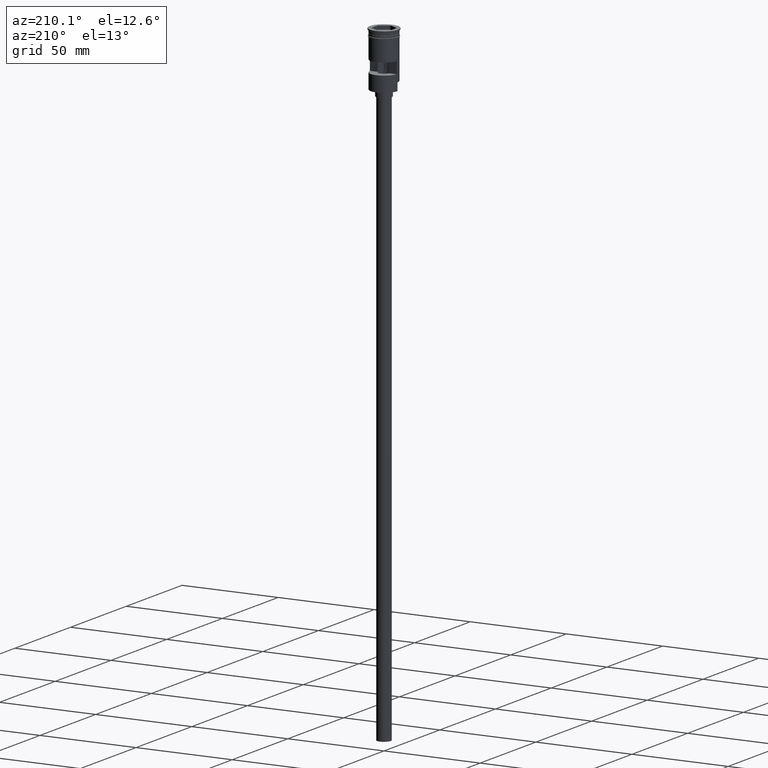
[diagram: clean part render]
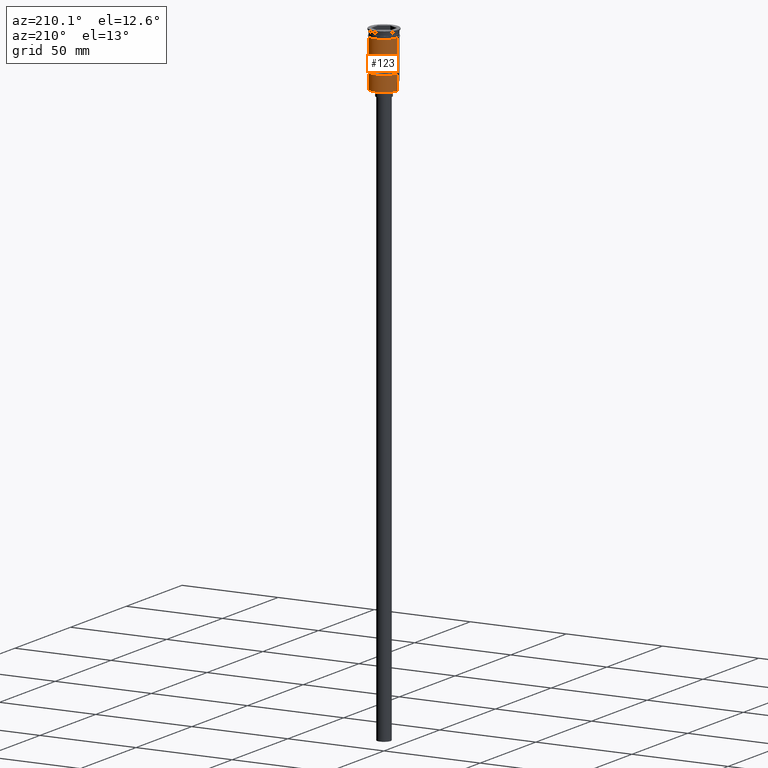
[diagram: same view with one face highlighted and labeled with its STEP entity id]
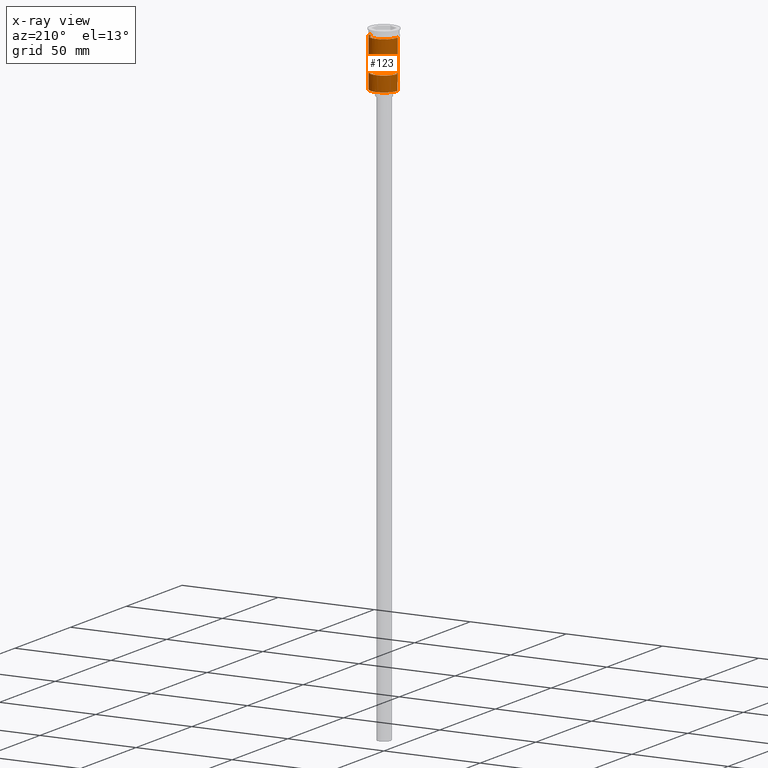
[diagram: x-ray of the same camera — body ghosted, the highlighted face saturated]
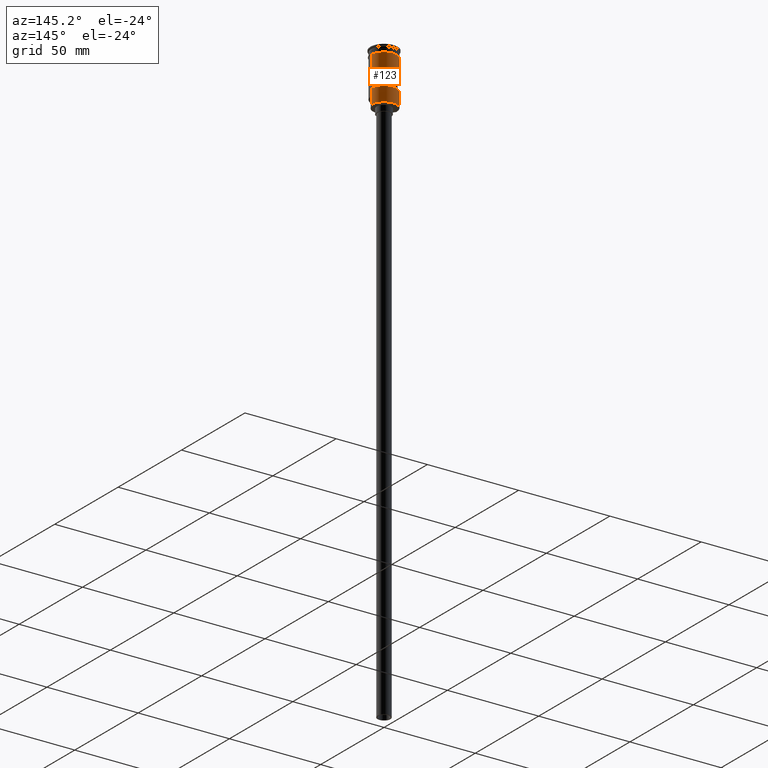
[diagram: same view with one face highlighted and labeled with its STEP entity id]
A machine part, auxiliary view. The second image highlights one B-rep face of the part: STEP entity #123.
The next image is the same camera in x-ray: the body ghosted, the highlighted face saturated — about 0% of this face is hidden behind the body in this view.
A second angle (auxiliary view) of the same face is appended — the face is thin or edge-on in the first view.
In plain terms, the highlighted cylindrical surface (edge-blend (fillet) strip) has radius 7 mm, axis along (-0, -0, 1).
Its self-contained STEP definition (entity closure, byte-faithful):
#11 = VECTOR ( 'NONE', #693, 1000.000000000000000 ) ;
#48 = ORIENTED_EDGE ( 'NONE', *, *, #415, .F. ) ;
#68 = LINE ( 'NONE', #75, #11 ) ;
#75 = CARTESIAN_POINT ( 'NONE',  ( -6.974238309665074631, 0.5999999999999999778, 0.000000000000000000 ) ) ;
#85 = VERTEX_POINT ( 'NONE', #461 ) ;
#86 = LINE ( 'NONE', #817, #1485 ) ;
#88 = VERTEX_POINT ( 'NONE', #1317 ) ;
#102 = CARTESIAN_POINT ( 'NONE',  ( 6.974238309665075519, 0.5999999999999999778, -20.50000000000000000 ) ) ;
#113 = CIRCLE ( 'NONE', #1107, 6.999999999999996447 ) ;
#117 = VECTOR ( 'NONE', #1547, 1000.000000000000000 ) ;
#120 = ORIENTED_EDGE ( 'NONE', *, *, #1446, .T. ) ;
#123 = ADVANCED_FACE ( 'NONE', ( #1068, #1577 ), #467, .T. ) ;
#127 = EDGE_CURVE ( 'NONE', #279, #1248, #273, .T. ) ;
#158 = EDGE_LOOP ( 'NONE', ( #1199, #120, #48, #1533, #179, #1041 ) ) ;
#163 = VERTEX_POINT ( 'NONE', #965 ) ;
#179 = ORIENTED_EDGE ( 'NONE', *, *, #1601, .F. ) ;
#196 = CIRCLE ( 'NONE', #1534, 6.999999999999999112 ) ;
#207 = EDGE_LOOP ( 'NONE', ( #538, #476, #664, #1572 ) ) ;
#234 = LINE ( 'NONE', #828, #855 ) ;
#269 = CARTESIAN_POINT ( 'NONE',  ( 6.999999999999993783, 8.572527594031465301E-16, -28.50000000000000000 ) ) ;
#273 = CIRCLE ( 'NONE', #1346, 6.999999999999996447 ) ;
#279 = VERTEX_POINT ( 'NONE', #102 ) ;
#286 = VERTEX_POINT ( 'NONE', #1263 ) ;
#347 = DIRECTION ( 'NONE',  ( -0.000000000000000000, -2.710505431213763057E-16, -1.000000000000000000 ) ) ;
#361 = DIRECTION ( 'NONE',  ( -0.000000000000000000, -5.421010862427526114E-16, 1.000000000000000000 ) ) ;
#364 = VERTEX_POINT ( 'NONE', #1400 ) ;
#381 = VERTEX_POINT ( 'NONE', #1254 ) ;
#407 = AXIS2_PLACEMENT_3D ( 'NONE', #601, #347, #645 ) ;
#415 = EDGE_CURVE ( 'NONE', #85, #163, #196, .T. ) ;
#461 = CARTESIAN_POINT ( 'NONE',  ( 6.999999999999999112, 0.000000000000000000, -3.799999999999998490 ) ) ;
#467 = CYLINDRICAL_SURFACE ( 'NONE', #1239, 6.999999999999996447 ) ;
#476 = ORIENTED_EDGE ( 'NONE', *, *, #1551, .F. ) ;
#483 = DIRECTION ( 'NONE',  ( 0.000000000000000000, 1.000000000000000000, 4.956352788505165240E-16 ) ) ;
#489 = DIRECTION ( 'NONE',  ( -0.000000000000000000, -0.000000000000000000, 1.000000000000000000 ) ) ;
#514 = EDGE_CURVE ( 'NONE', #1248, #88, #68, .T. ) ;
#538 = ORIENTED_EDGE ( 'NONE', *, *, #127, .F. ) ;
#541 = DIRECTION ( 'NONE',  ( -0.000000000000000000, -0.000000000000000000, 1.000000000000000000 ) ) ;
#601 = CARTESIAN_POINT ( 'NONE',  ( 0.000000000000000000, 0.000000000000000000, -14.50000000000000178 ) ) ;
#645 = DIRECTION ( 'NONE',  ( 0.000000000000000000, -1.000000000000000000, 2.478176394252582620E-16 ) ) ;
#664 = ORIENTED_EDGE ( 'NONE', *, *, #1571, .F. ) ;
#680 = EDGE_CURVE ( 'NONE', #1305, #286, #113, .T. ) ;
#682 = CARTESIAN_POINT ( 'NONE',  ( 0.000000000000000000, 0.000000000000000000, -20.50000000000000000 ) ) ;
#693 = DIRECTION ( 'NONE',  ( -0.000000000000000000, -0.000000000000000000, 1.000000000000000000 ) ) ;
#711 = DIRECTION ( 'NONE',  ( 0.000000000000000000, 0.000000000000000000, -1.000000000000000000 ) ) ;
#803 = CARTESIAN_POINT ( 'NONE',  ( 6.999999999999993783, 8.572527594031465301E-16, -28.30000000000002203 ) ) ;
#817 = CARTESIAN_POINT ( 'NONE',  ( 6.974238309665074631, 0.5999999999999999778, 0.000000000000000000 ) ) ;
#825 = DIRECTION ( 'NONE',  ( 1.000000000000000000, 0.000000000000000000, 0.000000000000000000 ) ) ;
#828 = CARTESIAN_POINT ( 'NONE',  ( -6.999999999999996447, 8.572527594031468259E-16, 0.000000000000000000 ) ) ;
#855 = VECTOR ( 'NONE', #1450, 1000.000000000000000 ) ;
#859 = DIRECTION ( 'NONE',  ( -1.000000000000000000, 0.000000000000000000, 0.000000000000000000 ) ) ;
#918 = CARTESIAN_POINT ( 'NONE',  ( 0.000000000000000000, 0.000000000000000000, 0.000000000000000000 ) ) ;
#934 = CARTESIAN_POINT ( 'NONE',  ( -6.999999999999993783, 0.000000000000000000, -24.30000000000006466 ) ) ;
#948 = DIRECTION ( 'NONE',  ( -0.000000000000000000, -0.000000000000000000, 1.000000000000000000 ) ) ;
#965 = CARTESIAN_POINT ( 'NONE',  ( -7.000000000000000000, 8.572527594031472204E-16, -3.799999999999998490 ) ) ;
#984 = DIRECTION ( 'NONE',  ( -0.000000000000000000, -0.000000000000000000, 1.000000000000000000 ) ) ;
#1041 = ORIENTED_EDGE ( 'NONE', *, *, #680, .T. ) ;
#1043 = LINE ( 'NONE', #1268, #117 ) ;
#1068 = FACE_BOUND ( 'NONE', #207, .T. ) ;
#1087 = CARTESIAN_POINT ( 'NONE',  ( -6.999999999999993783, 0.000000000000000000, -28.50000000000000000 ) ) ;
#1089 = CIRCLE ( 'NONE', #407, 6.999999999999996447 ) ;
#1107 = AXIS2_PLACEMENT_3D ( 'NONE', #1333, #1226, #859 ) ;
#1115 = LINE ( 'NONE', #269, #1294 ) ;
#1125 = CARTESIAN_POINT ( 'NONE',  ( -6.974238309665074631, 0.5999999999999999778, -20.50000000000000000 ) ) ;
#1142 = DIRECTION ( 'NONE',  ( 1.000000000000000000, 0.000000000000000000, 0.000000000000000000 ) ) ;
#1199 = ORIENTED_EDGE ( 'NONE', *, *, #1498, .T. ) ;
#1226 = DIRECTION ( 'NONE',  ( 0.000000000000000000, 0.000000000000000000, 1.000000000000000000 ) ) ;
#1239 = AXIS2_PLACEMENT_3D ( 'NONE', #918, #948, #825 ) ;
#1247 = CARTESIAN_POINT ( 'NONE',  ( 0.000000000000000000, 0.000000000000000000, -3.799999999999998490 ) ) ;
#1248 = VERTEX_POINT ( 'NONE', #1125 ) ;
#1254 = CARTESIAN_POINT ( 'NONE',  ( 6.999999999999996447, 8.572527594031468259E-16, -24.30000000000006466 ) ) ;
#1263 = CARTESIAN_POINT ( 'NONE',  ( -6.999999999999993783, 0.000000000000000000, -28.30000000000002203 ) ) ;
#1268 = CARTESIAN_POINT ( 'NONE',  ( 6.999999999999996447, 0.000000000000000000, 0.000000000000000000 ) ) ;
#1294 = VECTOR ( 'NONE', #984, 1000.000000000000000 ) ;
#1305 = VERTEX_POINT ( 'NONE', #803 ) ;
#1317 = CARTESIAN_POINT ( 'NONE',  ( -6.974238309665074631, 0.5999999999999999778, -14.50000000000000178 ) ) ;
#1333 = CARTESIAN_POINT ( 'NONE',  ( 0.000000000000000000, 0.000000000000000000, -28.30000000000002203 ) ) ;
#1346 = AXIS2_PLACEMENT_3D ( 'NONE', #682, #361, #483 ) ;
#1351 = VERTEX_POINT ( 'NONE', #934 ) ;
#1377 = EDGE_CURVE ( 'NONE', #381, #85, #1043, .T. ) ;
#1400 = CARTESIAN_POINT ( 'NONE',  ( 6.974238309665075519, 0.5999999999999999778, -14.50000000000000178 ) ) ;
#1444 = LINE ( 'NONE', #1087, #1595 ) ;
#1446 = EDGE_CURVE ( 'NONE', #1351, #163, #234, .T. ) ;
#1450 = DIRECTION ( 'NONE',  ( -0.000000000000000000, -0.000000000000000000, 1.000000000000000000 ) ) ;
#1485 = VECTOR ( 'NONE', #711, 1000.000000000000000 ) ;
#1498 = EDGE_CURVE ( 'NONE', #286, #1351, #1444, .T. ) ;
#1533 = ORIENTED_EDGE ( 'NONE', *, *, #1377, .F. ) ;
#1534 = AXIS2_PLACEMENT_3D ( 'NONE', #1247, #541, #1142 ) ;
#1547 = DIRECTION ( 'NONE',  ( -0.000000000000000000, -0.000000000000000000, 1.000000000000000000 ) ) ;
#1551 = EDGE_CURVE ( 'NONE', #364, #279, #86, .T. ) ;
#1571 = EDGE_CURVE ( 'NONE', #88, #364, #1089, .T. ) ;
#1572 = ORIENTED_EDGE ( 'NONE', *, *, #514, .F. ) ;
#1577 = FACE_OUTER_BOUND ( 'NONE', #158, .T. ) ;
#1595 = VECTOR ( 'NONE', #489, 1000.000000000000000 ) ;
#1601 = EDGE_CURVE ( 'NONE', #1305, #381, #1115, .T. ) ;